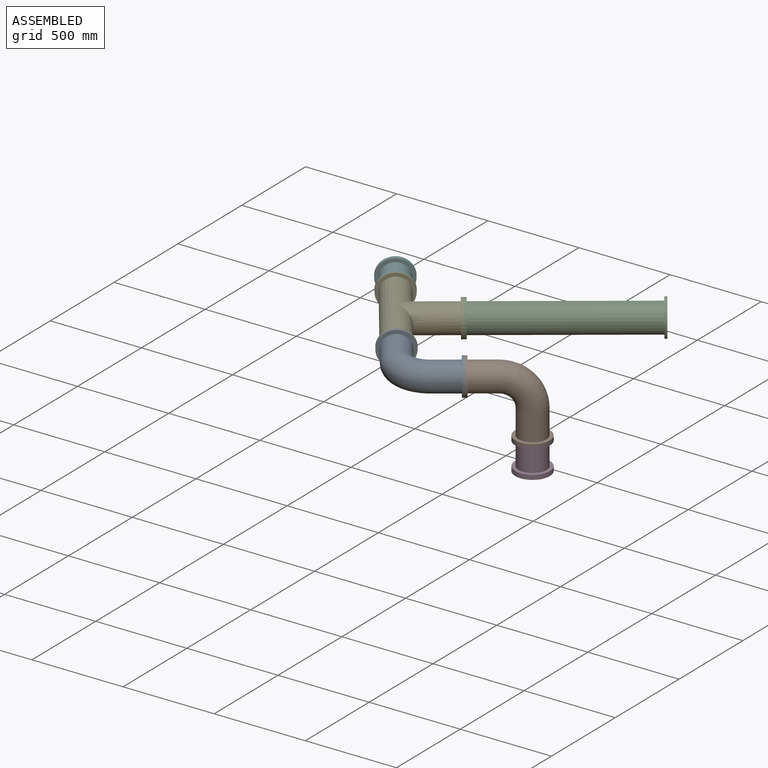
[diagram: assembled view]
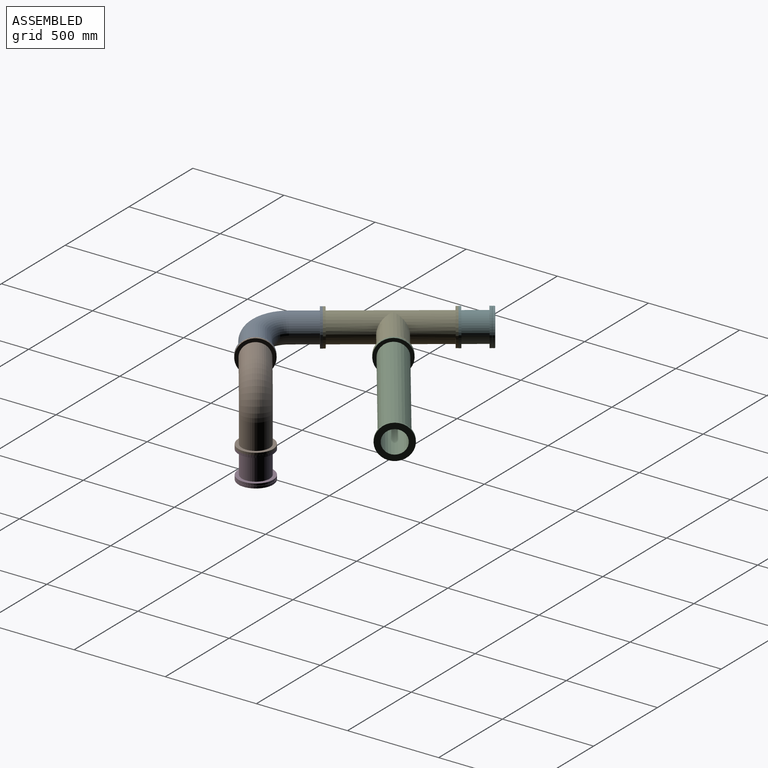
[diagram: assembled view, second angle]
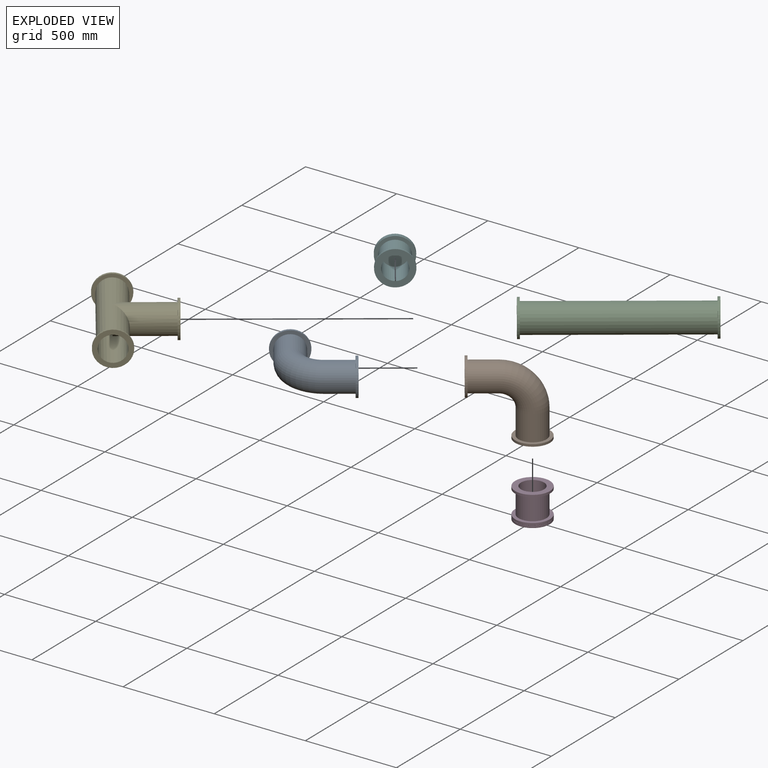
[diagram: exploded view]
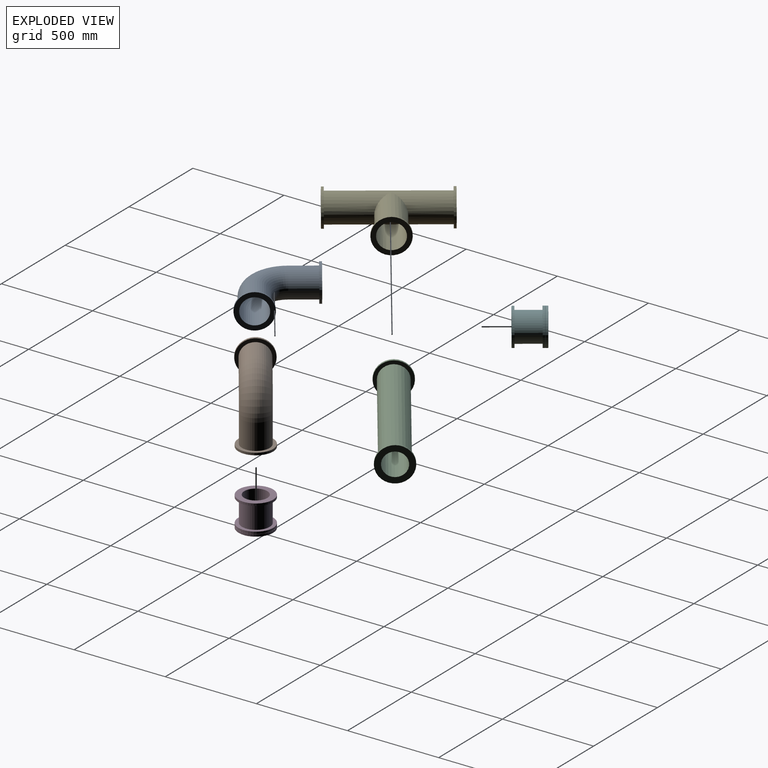
[diagram: exploded view, second angle]
ASSEMBLY  parts=6 mates=5
PART A: 12 faces, bbox 400.1x400.1x190.5 mm
  f0: cylinder r=76.2mm len=152.4mm, axis (1,0,0), area 66885.4mm2, adj f4,f11
  f1: cylinder r=76.2mm len=152.4mm, axis (0,1,0), area 66885.4mm2, adj f4,f9
  f2: plane 190.5x190.5mm, normal (0,-1,0), area 13174.4mm2, adj f5,f8
  f3: plane 190.5x190.5mm, normal (1,0,0), area 13174.4mm2, adj f7,f10
  f4: torus R=152.4mm, axis (0,0,-1), area 114614.5mm2, adj f0,f1
  f5: cylinder r=69.85mm len=152.4mm, axis (0,1,0), area 66885.4mm2, adj f2,f6
  f6: torus R=152.4mm, axis (0,0,-1), area 105063.3mm2, adj f5,f7
  f7: cylinder r=69.85mm len=152.4mm, axis (1,0,0), area 66885.4mm2, adj f3,f6
  f8: cylinder r=95.25mm len=190.5mm, axis (0,-1,0), area 7600.6mm2, adj f2,f9
  f9: plane 190.5x190.5mm, normal (0,1,0), area 10260.8mm2, adj f1,f8
  f10: cylinder r=95.25mm len=190.5mm, axis (1,0,0), area 7600.6mm2, adj f3,f11
  f11: plane 190.5x190.5mm, normal (-1,0,0), area 10260.8mm2, adj f0,f10
PART B: same geometry as A
PART C: 8 faces, bbox 190.5x914.4x190.5 mm
  f0: cylinder r=95.25mm len=190.5mm, axis (0,1,0), area 7600.6mm2, adj f3,f7
  f1: cylinder r=63.5mm len=914.4mm, axis (0,1,0), area 364829.4mm2, adj f2,f3
  f2: plane 190.5x190.5mm, normal (0,-1,0), area 15834.6mm2, adj f1,f4
  f3: plane 190.5x190.5mm, normal (0,1,0), area 15834.6mm2, adj f0,f1
  f4: cylinder r=95.25mm len=190.5mm, axis (0,1,0), area 7600.6mm2, adj f2,f6
  f5: cylinder r=76.2mm len=889mm, axis (0,1,0), area 425634.3mm2, adj f6,f7
  f6: plane 190.5x190.5mm, normal (0,1,0), area 10260.8mm2, adj f4,f5
  f7: plane 190.5x190.5mm, normal (0,-1,0), area 10260.8mm2, adj f0,f5
PART D: 13 faces, bbox 190.5x165.1x190.5 mm
  f0: cylinder r=95.25mm len=190.5mm, axis (0,1,0), area 6840.6mm2, adj f6,f7
  f1: cylinder r=63.5mm len=152.4mm, axis (0,1,0), area 60804.9mm2, adj f2,f8
  f2: plane 190.5x190.5mm, normal (0,-1,0), area 15834.6mm2, adj f1,f3
  f3: cylinder r=95.25mm len=190.5mm, axis (0,1,0), area 7600.6mm2, adj f2,f5
  f4: cylinder r=76.2mm len=152.4mm, axis (0,1,0), area 60804.9mm2, adj f5,f6
  f5: plane 190.5x190.5mm, normal (0,1,0), area 10260.8mm2, adj f3,f4
  f6: plane 190.5x190.5mm, normal (0,-1,0), area 10260.8mm2, adj f0,f4
  f7: cone r=93.98mm half-angle=45deg, axis (0,-1,0), area 1067.7mm2, adj f0,f11
  f8: plane 127x127mm, normal (0,-1,0), area 12667.7mm2, adj f1
  f9: cylinder r=95.25mm len=190.5mm, axis (0,-1,0), area 6840.6mm2, adj f11,f12
  f10: plane 187.96x187.96mm, normal (0,1,0), area 27747.3mm2, adj f12
  f11: plane 190.5x190.5mm, normal (0,-1,0), area 755mm2, adj f7,f9
  f12: cone r=93.98mm half-angle=45deg, axis (0,-1,0), area 1067.7mm2, adj f9,f10
PART E: 21 faces, bbox 190.5x609.6x400.1 mm
  f0: cylinder r=76.2mm len=292.1mm, axis (0,0,1), area 116625.5mm2, adj f1,f13
  f1: cylinder r=76.2mm len=584.2mm, axis (0,-1,0), area 256476.8mm2, adj f0,f9,f11
  f2: cylinder r=69.85mm len=609.6mm, axis (0,-1,0), area 243047.6mm2, adj f3,f4,f5,f6,f7
  f3: plane 190.5x190.5mm, normal (0,1,0), area 13174.4mm2, adj f2,f10
  f4: plane 190.5x190.5mm, normal (0,-1,0), area 13174.4mm2, adj f2,f8
  f5: plane 152.4x139.7mm, normal (0,0,-1), area 17721.3mm2, adj f2,f6,f7
  f6: cylinder r=76.2mm len=139.7mm, axis (0,0,1), area 8981.8mm2, adj f2,f5
  f7: cylinder r=76.2mm len=139.7mm, axis (0,0,1), area 8981.8mm2, adj f2,f5
  f8: cylinder r=95.25mm len=190.5mm, axis (0,-1,0), area 7600.6mm2, adj f4,f9
  f9: plane 190.5x190.5mm, normal (0,1,0), area 10260.8mm2, adj f1,f8
  f10: cylinder r=95.25mm len=190.5mm, axis (0,1,0), area 7600.6mm2, adj f3,f11
  f11: plane 190.5x190.5mm, normal (0,-1,0), area 10260.8mm2, adj f1,f10
  f12: cylinder r=95.25mm len=190.5mm, axis (0,0,1), area 7600.6mm2, adj f13,f16
  f13: plane 190.5x190.5mm, normal (0,0,-1), area 10260.8mm2, adj f0,f12
  f14: cylinder r=76.2mm len=139.7mm, axis (0,-1,0), area 17993.7mm2, adj f15
  f15: cylinder r=69.85mm len=274.35mm, axis (0,0,1), area 109276.7mm2, adj f14,f16
  f16: plane 190.5x190.5mm, normal (0,0,1), area 13174.4mm2, adj f12,f15
  f17: plane 139.7x139.12mm, normal (0,0,1), area 15323mm2, adj f18,f19,f20
  f18: cylinder r=69.85mm len=139.12mm, axis (0,0,1), area 8404.9mm2, adj f17,f20
  f19: cylinder r=69.85mm len=139.12mm, axis (0,0,1), area 8404.9mm2, adj f17,f20
  f20: cylinder r=69.85mm len=140.12mm, axis (0,-1,0), area 19435.3mm2, adj f17,f18,f19
PART F: same geometry as D
PLACE A rot(axis=(0.95,0.3,0),180deg) t=(348.9,-641.9,0)mm
PLACE B rot(axis=(0.42,0.81,-0.42),102.2deg) t=(773.88,-713.99,0)mm
PLACE C rot(axis=(0,0,1),125.4deg) t=(1106.97,283.18,0)mm
PLACE D rot(axis=(-0.91,-0.29,0.29),95.3deg) t=(1022.41,-537.54,-370.34)mm
PLACE E rot(axis=(-0.69,-0.22,-0.69),155.2deg) t=(166.28,-384.67,0)mm
PLACE F rot(axis=(0,0,1),35.4deg) t=(-41.94,-91.39,0)mm
MATE fastened E.f0 <-> C.f1  axis (-0.82,-0.58,0) through (414.81,-208.22,0)mm
MATE fastened F.f1 <-> E.f1  axis (-0.58,0.82,0) through (-4,-144.83,0)mm
MATE fastened D.f1 <-> B.f0  axis (0,0,-1) through (1022.41,-537.54,-304.8)mm
MATE fastened B.f1 <-> A.f0  axis (0.82,0.58,0) through (773.88,-713.99,0)mm
MATE fastened A.f1 <-> E.f1  axis (0.58,-0.82,0) through (348.9,-641.9,0)mm
